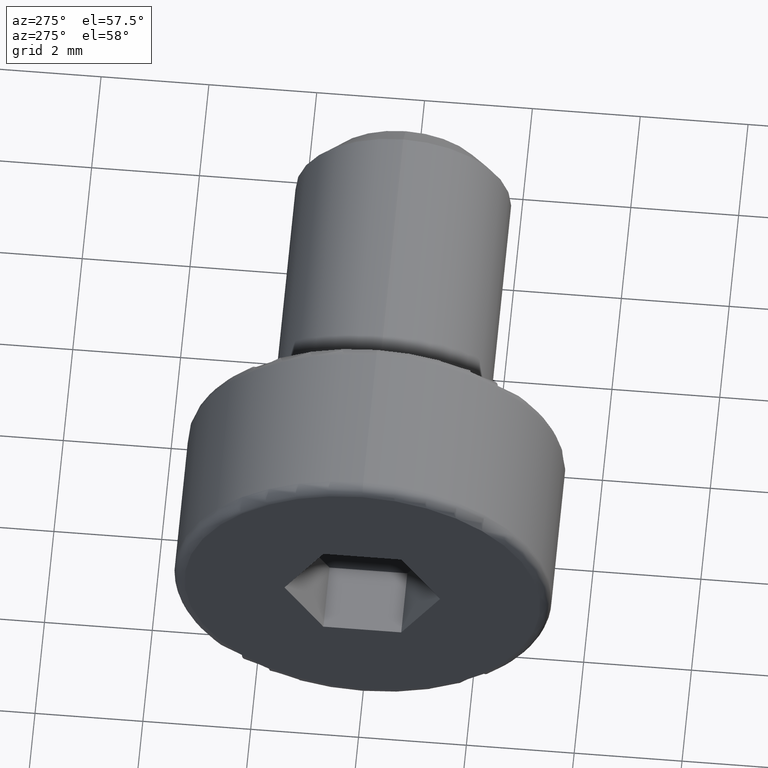
[diagram: clean part render]
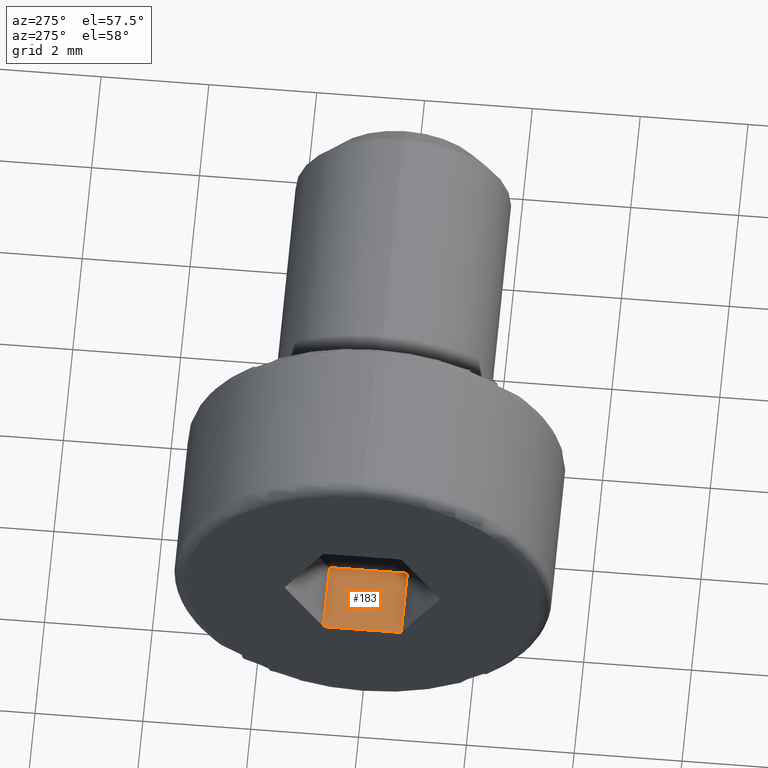
[diagram: same view with one face highlighted and labeled with its STEP entity id]
A machine part, auxiliary view. The second image highlights one B-rep face of the part: STEP entity #183.
In plain terms, the highlighted planar face has unit normal (0, 0, -1).
Its self-contained STEP definition (entity closure, byte-faithful):
#32 = ORIENTED_EDGE ( 'NONE', *, *, #612, .F. ) ;
#34 = CARTESIAN_POINT ( 'NONE',  ( -3.200000000000000200, -0.7216878364870908900, -1.250000000000022200 ) ) ;
#37 = EDGE_CURVE ( 'NONE', #389, #63, #459, .T. ) ;
#47 = CARTESIAN_POINT ( 'NONE',  ( -3.200000000000000200, -0.7216878364870911200, -1.250000000000022200 ) ) ;
#48 = CARTESIAN_POINT ( 'NONE',  ( -1.900000000000000100, 0.7216878364870081800, -1.250000000000022200 ) ) ;
#51 = ORIENTED_EDGE ( 'NONE', *, *, #37, .F. ) ;
#63 = VERTEX_POINT ( 'NONE', #47 ) ;
#93 = VERTEX_POINT ( 'NONE', #632 ) ;
#131 = VECTOR ( 'NONE', #277, 1000.000000000000000 ) ;
#154 = CARTESIAN_POINT ( 'NONE',  ( -1.900000000000000100, -0.7216878364870908900, -1.250000000000022200 ) ) ;
#167 = VERTEX_POINT ( 'NONE', #48 ) ;
#183 = ADVANCED_FACE ( 'NONE', ( #489 ), #817, .F. ) ;
#202 = VECTOR ( 'NONE', #258, 1000.000000000000000 ) ;
#220 = DIRECTION ( 'NONE',  ( -0.0000000000000000000, -1.000000000000000000, -0.0000000000000000000 ) ) ;
#258 = DIRECTION ( 'NONE',  ( -1.000000000000000000, -0.0000000000000000000, -0.0000000000000000000 ) ) ;
#277 = DIRECTION ( 'NONE',  ( -0.0000000000000000000, -1.000000000000000000, -0.0000000000000000000 ) ) ;
#291 = LINE ( 'NONE', #403, #131 ) ;
#292 = VECTOR ( 'NONE', #733, 1000.000000000000000 ) ;
#303 = EDGE_CURVE ( 'NONE', #167, #93, #365, .T. ) ;
#321 = CARTESIAN_POINT ( 'NONE',  ( -1.900000000000000100, -0.7216878364870908900, -1.250000000000022200 ) ) ;
#339 = EDGE_CURVE ( 'NONE', #93, #63, #517, .T. ) ;
#343 = VECTOR ( 'NONE', #220, 1000.000000000000000 ) ;
#356 = ORIENTED_EDGE ( 'NONE', *, *, #339, .T. ) ;
#365 = LINE ( 'NONE', #496, #202 ) ;
#377 = DIRECTION ( 'NONE',  ( 0.0000000000000000000, 0.0000000000000000000, -1.000000000000000000 ) ) ;
#389 = VERTEX_POINT ( 'NONE', #154 ) ;
#395 = ORIENTED_EDGE ( 'NONE', *, *, #303, .T. ) ;
#403 = CARTESIAN_POINT ( 'NONE',  ( -1.900000000000000100, -0.7216878364870908900, -1.250000000000022200 ) ) ;
#422 = CARTESIAN_POINT ( 'NONE',  ( -1.900000000000000100, -0.7216878364870908900, -1.250000000000022200 ) ) ;
#459 = LINE ( 'NONE', #422, #292 ) ;
#489 = FACE_OUTER_BOUND ( 'NONE', #665, .T. ) ;
#496 = CARTESIAN_POINT ( 'NONE',  ( -1.900000000000000100, 0.7216878364870081800, -1.250000000000022200 ) ) ;
#517 = LINE ( 'NONE', #34, #343 ) ;
#597 = AXIS2_PLACEMENT_3D ( 'NONE', #321, #377, #694 ) ;
#612 = EDGE_CURVE ( 'NONE', #167, #389, #291, .T. ) ;
#632 = CARTESIAN_POINT ( 'NONE',  ( -3.200000000000000200, 0.7216878364870081800, -1.250000000000022200 ) ) ;
#665 = EDGE_LOOP ( 'NONE', ( #356, #51, #32, #395 ) ) ;
#694 = DIRECTION ( 'NONE',  ( -1.000000000000000000, 0.0000000000000000000, -0.0000000000000000000 ) ) ;
#733 = DIRECTION ( 'NONE',  ( -1.000000000000000000, -0.0000000000000000000, -0.0000000000000000000 ) ) ;
#817 = PLANE ( 'NONE',  #597 ) ;